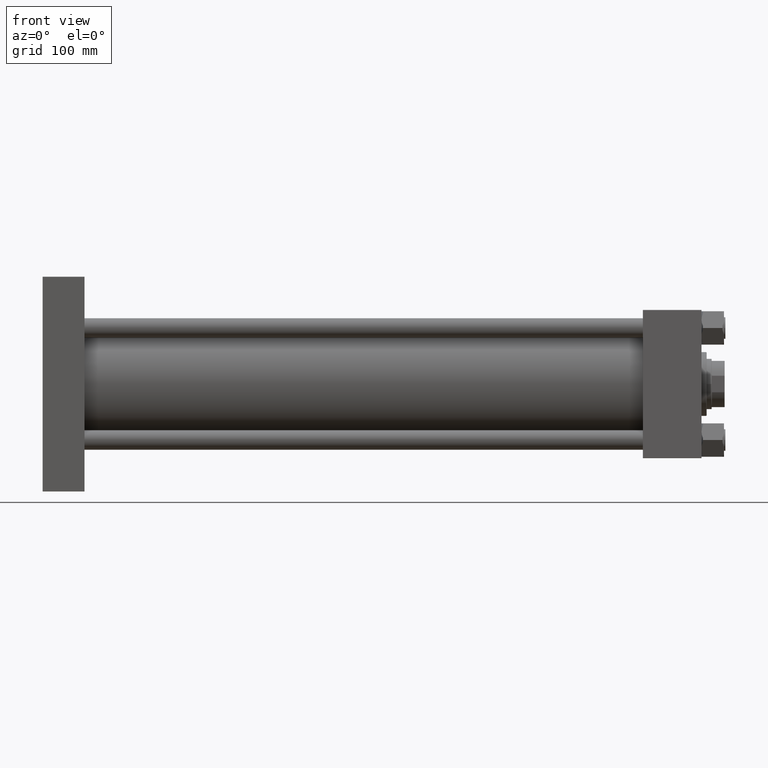
[diagram: clean part render]
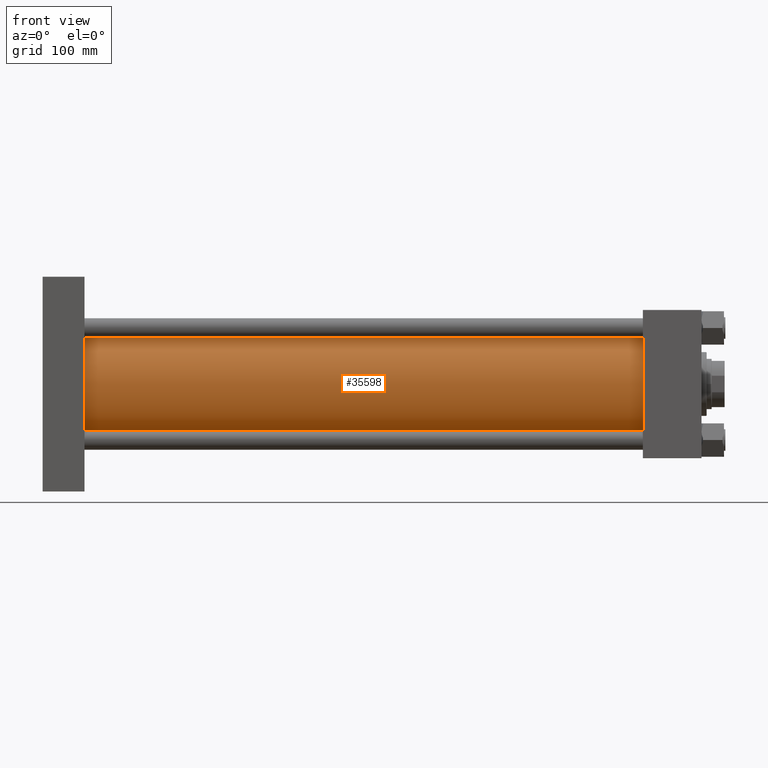
[diagram: same view with one face highlighted and labeled with its STEP entity id]
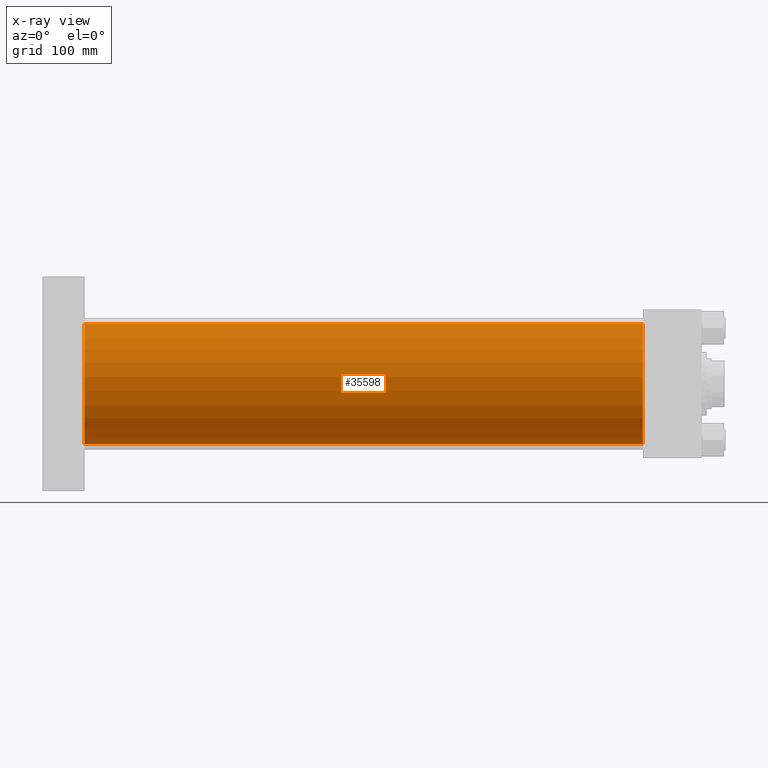
[diagram: x-ray of the same camera — body ghosted, the highlighted face saturated]
A machine part, front view. The second image highlights one B-rep face of the part: STEP entity #35598.
The next image is the same camera in x-ray: the body ghosted, the highlighted face saturated — about 0% of this face is hidden behind the body in this view.
In plain terms, the highlighted cylindrical surface (partial cylindrical patch) has radius 83 mm, axis along (-1, -0, -0).
Its self-contained STEP definition (entity closure, byte-faithful):
#1216 = ORIENTED_EDGE ( 'NONE', *, *, #3421, .F. ) ;
#2045 = DIRECTION ( 'NONE',  ( 0.000000000000000000, 0.000000000000000000, 1.000000000000000000 ) ) ;
#3421 = EDGE_CURVE ( 'NONE', #8670, #3566, #4613, .T. ) ;
#3566 = VERTEX_POINT ( 'NONE', #46975 ) ;
#4558 = VERTEX_POINT ( 'NONE', #50493 ) ;
#4613 = CIRCLE ( 'NONE', #18517, 83.00000000000000000 ) ;
#4863 = DIRECTION ( 'NONE',  ( 1.000000000000000000, 0.000000000000000000, 0.000000000000000000 ) ) ;
#5252 = EDGE_CURVE ( 'NONE', #4558, #21140, #19398, .T. ) ;
#5630 = CARTESIAN_POINT ( 'NONE',  ( 830.0000000000001137, -2.602085213965210642E-15, 0.000000000000000000 ) ) ;
#5677 = EDGE_CURVE ( 'NONE', #8670, #4558, #23684, .T. ) ;
#8665 = ORIENTED_EDGE ( 'NONE', *, *, #5252, .T. ) ;
#8670 = VERTEX_POINT ( 'NONE', #18375 ) ;
#9254 = VECTOR ( 'NONE', #11511, 1000.000000000000000 ) ;
#11009 = CARTESIAN_POINT ( 'NONE',  ( 830.0000000000001137, 7.562483218957820855E-15, -83.00000000000000000 ) ) ;
#11511 = DIRECTION ( 'NONE',  ( -1.000000000000000000, -0.000000000000000000, -0.000000000000000000 ) ) ;
#13871 = ORIENTED_EDGE ( 'NONE', *, *, #23018, .F. ) ;
#16779 = DIRECTION ( 'NONE',  ( -1.000000000000000000, -0.000000000000000000, -0.000000000000000000 ) ) ;
#18375 = CARTESIAN_POINT ( 'NONE',  ( 830.0000000000001137, -2.602085213965210642E-15, 83.00000000000000000 ) ) ;
#18517 = AXIS2_PLACEMENT_3D ( 'NONE', #5630, #4863, #24304 ) ;
#18629 = VECTOR ( 'NONE', #16779, 1000.000000000000000 ) ;
#19129 = ORIENTED_EDGE ( 'NONE', *, *, #5677, .T. ) ;
#19398 = CIRCLE ( 'NONE', #40636, 83.00000000000000000 ) ;
#21140 = VERTEX_POINT ( 'NONE', #35793 ) ;
#21730 = CARTESIAN_POINT ( 'NONE',  ( 830.0000000000001137, -2.602085213965210642E-15, 0.000000000000000000 ) ) ;
#23018 = EDGE_CURVE ( 'NONE', #3566, #21140, #34256, .T. ) ;
#23684 = LINE ( 'NONE', #24441, #18629 ) ;
#24304 = DIRECTION ( 'NONE',  ( 0.000000000000000000, 0.000000000000000000, -1.000000000000000000 ) ) ;
#24441 = CARTESIAN_POINT ( 'NONE',  ( 830.0000000000001137, -2.602085213965210642E-15, 83.00000000000000000 ) ) ;
#25908 = CARTESIAN_POINT ( 'NONE',  ( 58.00000000000004974, -2.602085213965210642E-15, 0.000000000000000000 ) ) ;
#26311 = CYLINDRICAL_SURFACE ( 'NONE', #30122, 83.00000000000000000 ) ;
#30122 = AXIS2_PLACEMENT_3D ( 'NONE', #21730, #33721, #2045 ) ;
#30847 = EDGE_LOOP ( 'NONE', ( #13871, #1216, #19129, #8665 ) ) ;
#33721 = DIRECTION ( 'NONE',  ( -1.000000000000000000, -0.000000000000000000, -0.000000000000000000 ) ) ;
#34256 = LINE ( 'NONE', #11009, #9254 ) ;
#35598 = ADVANCED_FACE ( 'NONE', ( #48798 ), #26311, .T. ) ;
#35793 = CARTESIAN_POINT ( 'NONE',  ( 58.00000000000004974, 7.562483218957820855E-15, -83.00000000000000000 ) ) ;
#40636 = AXIS2_PLACEMENT_3D ( 'NONE', #25908, #45818, #49890 ) ;
#45818 = DIRECTION ( 'NONE',  ( 1.000000000000000000, 0.000000000000000000, 0.000000000000000000 ) ) ;
#46975 = CARTESIAN_POINT ( 'NONE',  ( 830.0000000000001137, 7.562483218957820855E-15, -83.00000000000000000 ) ) ;
#48798 = FACE_OUTER_BOUND ( 'NONE', #30847, .T. ) ;
#49890 = DIRECTION ( 'NONE',  ( 0.000000000000000000, 0.000000000000000000, 1.000000000000000000 ) ) ;
#50493 = CARTESIAN_POINT ( 'NONE',  ( 58.00000000000004974, -2.602085213965210642E-15, 83.00000000000000000 ) ) ;